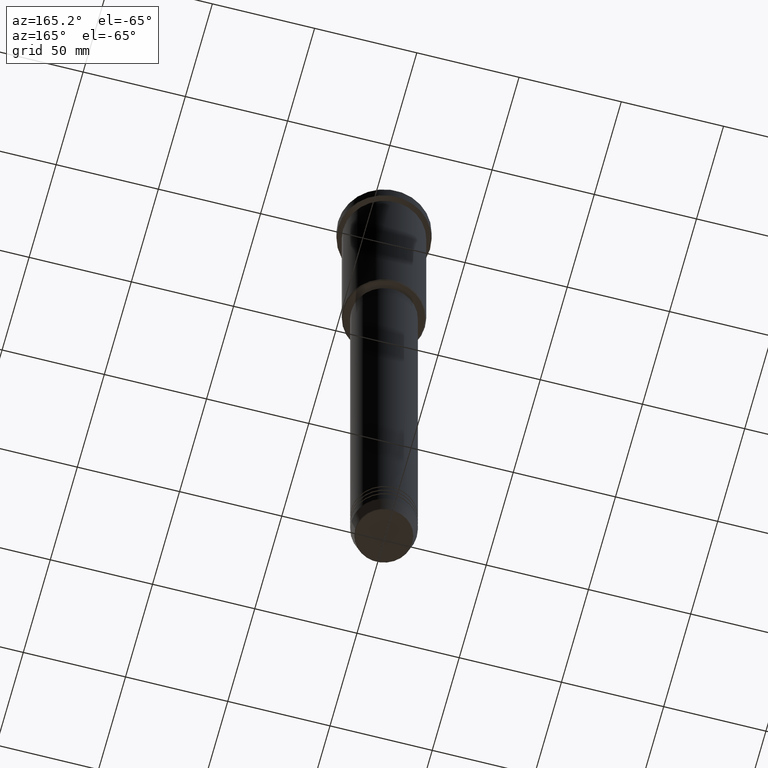
[diagram: clean part render]
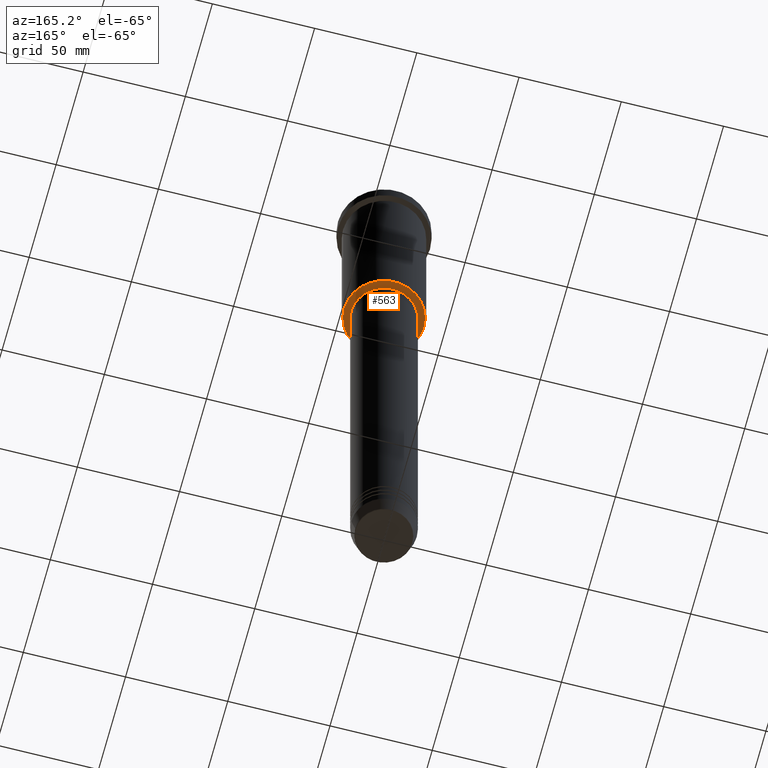
[diagram: same view with one face highlighted and labeled with its STEP entity id]
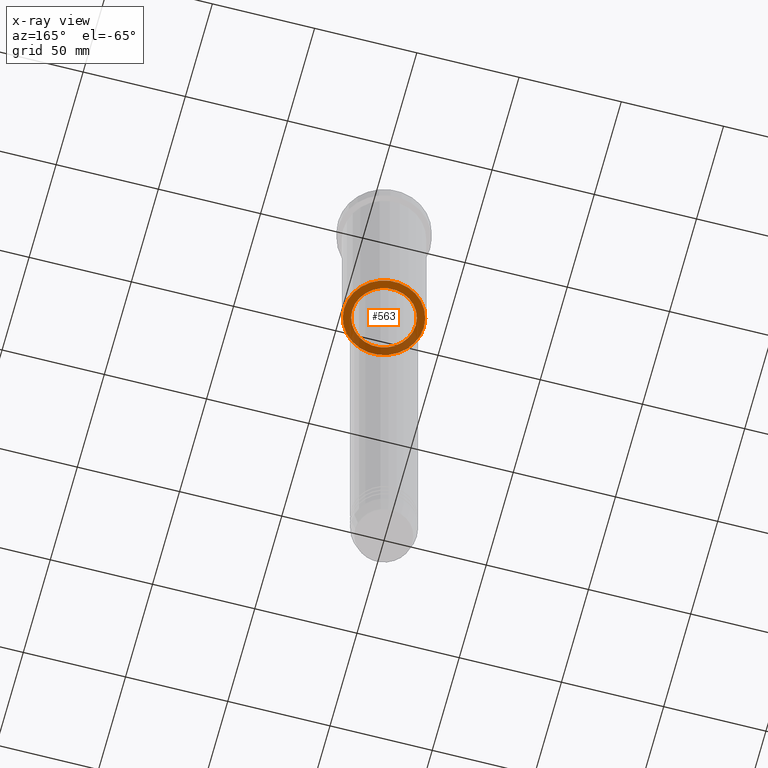
[diagram: x-ray of the same camera — body ghosted, the highlighted face saturated]
A machine part, auxiliary view. The second image highlights one B-rep face of the part: STEP entity #563.
The next image is the same camera in x-ray: the body ghosted, the highlighted face saturated — about 33% of this face is hidden behind the body in this view.
In plain terms, the highlighted planar face has unit normal (0, 0, -1).
Its self-contained STEP definition (entity closure, byte-faithful):
#18 = CARTESIAN_POINT ( 'NONE',  ( -19.49999999999998934, 2.418677428316021937E-15, -95.99999999999998579 ) ) ;
#86 = DIRECTION ( 'NONE',  ( 0.000000000000000000, 0.000000000000000000, -1.000000000000000000 ) ) ;
#99 = DIRECTION ( 'NONE',  ( 0.000000000000000000, 0.000000000000000000, -1.000000000000000000 ) ) ;
#122 = CARTESIAN_POINT ( 'NONE',  ( 0.000000000000000000, 0.000000000000000000, -95.99999999999997158 ) ) ;
#147 = VERTEX_POINT ( 'NONE', #18 ) ;
#153 = DIRECTION ( 'NONE',  ( 0.000000000000000000, 0.000000000000000000, -1.000000000000000000 ) ) ;
#185 = CARTESIAN_POINT ( 'NONE',  ( 0.000000000000000000, 20.00000000000000355, -95.99999999999998579 ) ) ;
#279 = FACE_OUTER_BOUND ( 'NONE', #1112, .T. ) ;
#301 = DIRECTION ( 'NONE',  ( 1.000000000000000000, 0.000000000000000000, 0.000000000000000000 ) ) ;
#313 = AXIS2_PLACEMENT_3D ( 'NONE', #567, #899, #301 ) ;
#352 = CIRCLE ( 'NONE', #910, 19.49999999999998934 ) ;
#382 = PLANE ( 'NONE',  #533 ) ;
#405 = ORIENTED_EDGE ( 'NONE', *, *, #1110, .T. ) ;
#415 = CARTESIAN_POINT ( 'NONE',  ( 19.49999999999998934, 0.000000000000000000, -95.99999999999998579 ) ) ;
#423 = CARTESIAN_POINT ( 'NONE',  ( 0.000000000000000000, 0.000000000000000000, -95.99999999999998579 ) ) ;
#452 = DIRECTION ( 'NONE',  ( -1.000000000000000000, 0.000000000000000000, -0.000000000000000000 ) ) ;
#488 = CARTESIAN_POINT ( 'NONE',  ( -15.50000000000000000, 1.898202538678397557E-15, -95.99999999999997158 ) ) ;
#533 = AXIS2_PLACEMENT_3D ( 'NONE', #185, #86, #452 ) ;
#563 = ADVANCED_FACE ( 'NONE', ( #279, #639 ), #382, .T. ) ;
#567 = CARTESIAN_POINT ( 'NONE',  ( 0.000000000000000000, 0.000000000000000000, -95.99999999999997158 ) ) ;
#606 = ORIENTED_EDGE ( 'NONE', *, *, #837, .T. ) ;
#631 = EDGE_LOOP ( 'NONE', ( #606, #935 ) ) ;
#639 = FACE_BOUND ( 'NONE', #631, .T. ) ;
#703 = ORIENTED_EDGE ( 'NONE', *, *, #858, .T. ) ;
#722 = AXIS2_PLACEMENT_3D ( 'NONE', #1083, #99, #989 ) ;
#731 = DIRECTION ( 'NONE',  ( 1.000000000000000000, 0.000000000000000000, 0.000000000000000000 ) ) ;
#750 = VERTEX_POINT ( 'NONE', #415 ) ;
#812 = CIRCLE ( 'NONE', #313, 15.50000000000000000 ) ;
#835 = DIRECTION ( 'NONE',  ( -0.000000000000000000, -0.000000000000000000, 1.000000000000000000 ) ) ;
#837 = EDGE_CURVE ( 'NONE', #986, #1055, #1109, .T. ) ;
#838 = DIRECTION ( 'NONE',  ( -1.000000000000000000, 0.000000000000000000, 0.000000000000000000 ) ) ;
#858 = EDGE_CURVE ( 'NONE', #147, #750, #1001, .T. ) ;
#887 = AXIS2_PLACEMENT_3D ( 'NONE', #122, #835, #731 ) ;
#899 = DIRECTION ( 'NONE',  ( -0.000000000000000000, -0.000000000000000000, 1.000000000000000000 ) ) ;
#910 = AXIS2_PLACEMENT_3D ( 'NONE', #423, #153, #838 ) ;
#935 = ORIENTED_EDGE ( 'NONE', *, *, #940, .T. ) ;
#940 = EDGE_CURVE ( 'NONE', #1055, #986, #812, .T. ) ;
#986 = VERTEX_POINT ( 'NONE', #1105 ) ;
#989 = DIRECTION ( 'NONE',  ( -1.000000000000000000, 0.000000000000000000, 0.000000000000000000 ) ) ;
#1001 = CIRCLE ( 'NONE', #722, 19.49999999999998934 ) ;
#1055 = VERTEX_POINT ( 'NONE', #488 ) ;
#1083 = CARTESIAN_POINT ( 'NONE',  ( 0.000000000000000000, 0.000000000000000000, -95.99999999999998579 ) ) ;
#1105 = CARTESIAN_POINT ( 'NONE',  ( 15.50000000000000000, 0.000000000000000000, -95.99999999999997158 ) ) ;
#1109 = CIRCLE ( 'NONE', #887, 15.50000000000000000 ) ;
#1110 = EDGE_CURVE ( 'NONE', #750, #147, #352, .T. ) ;
#1112 = EDGE_LOOP ( 'NONE', ( #405, #703 ) ) ;